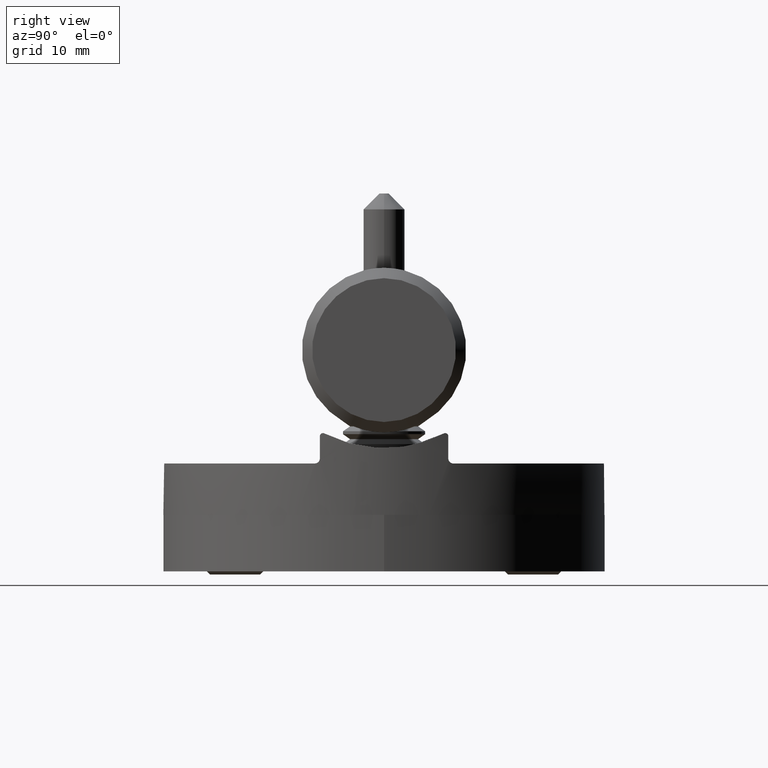
[diagram: clean part render]
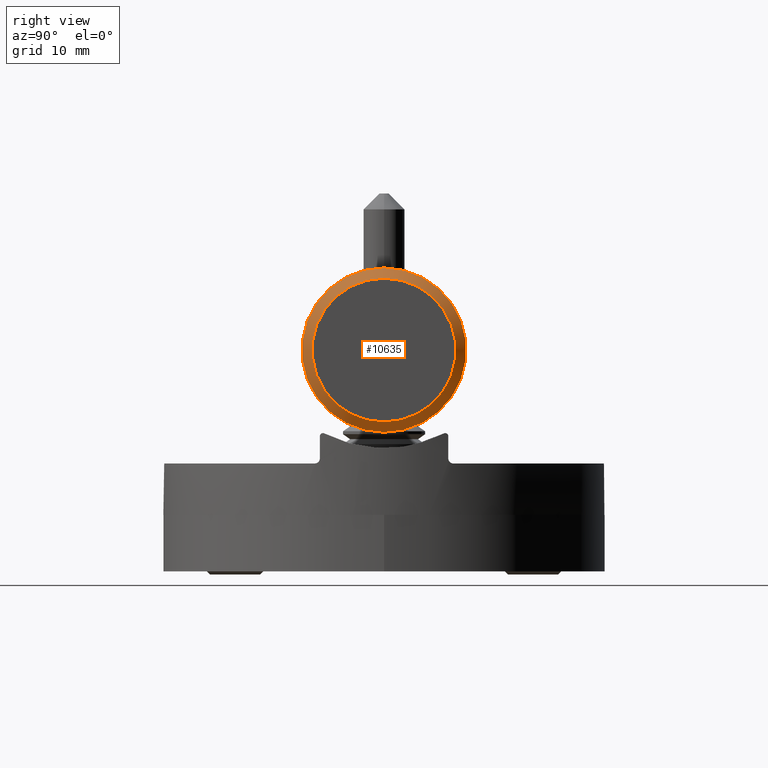
[diagram: same view with one face highlighted and labeled with its STEP entity id]
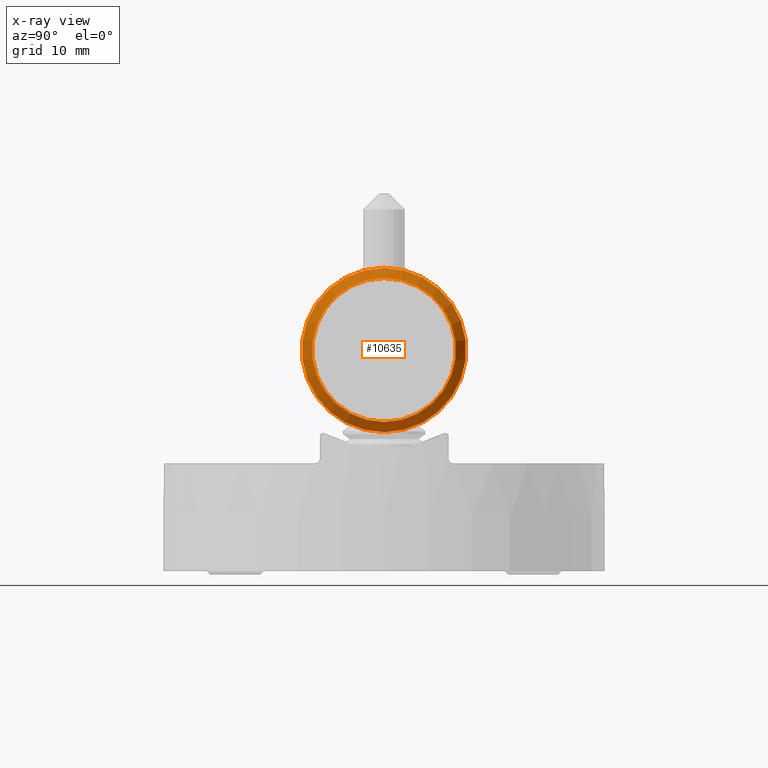
[diagram: x-ray of the same camera — body ghosted, the highlighted face saturated]
A machine part, right view. The second image highlights one B-rep face of the part: STEP entity #10635.
The next image is the same camera in x-ray: the body ghosted, the highlighted face saturated — about 0% of this face is hidden behind the body in this view.
In plain terms, the highlighted conical surface has half-angle 45 deg.
Its self-contained STEP definition (entity closure, byte-faithful):
#1131 = DIRECTION ( 'NONE',  ( -1.000000000000000000, 0.000000000000000000, 0.000000000000000000 ) ) ;
#1638 = CIRCLE ( 'NONE', #11763, 7.000000000000002665 ) ;
#3120 = VERTEX_POINT ( 'NONE', #19074 ) ;
#3542 = ORIENTED_EDGE ( 'NONE', *, *, #6314, .F. ) ;
#3645 = AXIS2_PLACEMENT_3D ( 'NONE', #4064, #7339, #14725 ) ;
#4064 = CARTESIAN_POINT ( 'NONE',  ( 10.00000000000000000, 0.000000000000000000, 0.000000000000000000 ) ) ;
#4305 = CARTESIAN_POINT ( 'NONE',  ( 10.00000000000000000, 0.000000000000000000, 0.000000000000000000 ) ) ;
#5531 = ORIENTED_EDGE ( 'NONE', *, *, #20659, .F. ) ;
#5680 = CIRCLE ( 'NONE', #6044, 8.000000000000000000 ) ;
#6044 = AXIS2_PLACEMENT_3D ( 'NONE', #22451, #1131, #6499 ) ;
#6314 = EDGE_CURVE ( 'NONE', #6472, #6472, #5680, .T. ) ;
#6472 = VERTEX_POINT ( 'NONE', #13683 ) ;
#6499 = DIRECTION ( 'NONE',  ( 0.000000000000000000, 0.000000000000000000, -1.000000000000000000 ) ) ;
#7339 = DIRECTION ( 'NONE',  ( -1.000000000000000000, 0.000000000000000000, 0.000000000000000000 ) ) ;
#9208 = EDGE_LOOP ( 'NONE', ( #5531 ) ) ;
#10635 = ADVANCED_FACE ( 'NONE', ( #14515, #13960 ), #13100, .T. ) ;
#11119 = DIRECTION ( 'NONE',  ( 1.000000000000000000, 0.000000000000000000, 0.000000000000000000 ) ) ;
#11763 = AXIS2_PLACEMENT_3D ( 'NONE', #4305, #11119, #14721 ) ;
#13100 = CONICAL_SURFACE ( 'NONE', #3645, 7.000000000000002665, 0.7853981633974466137 ) ;
#13683 = CARTESIAN_POINT ( 'NONE',  ( 9.000000000000000000, 0.000000000000000000, -8.000000000000000000 ) ) ;
#13960 = FACE_BOUND ( 'NONE', #9208, .T. ) ;
#14515 = FACE_OUTER_BOUND ( 'NONE', #15396, .T. ) ;
#14721 = DIRECTION ( 'NONE',  ( 0.000000000000000000, 0.000000000000000000, -1.000000000000000000 ) ) ;
#14725 = DIRECTION ( 'NONE',  ( 0.000000000000000000, 0.000000000000000000, 1.000000000000000000 ) ) ;
#15396 = EDGE_LOOP ( 'NONE', ( #3542 ) ) ;
#19074 = CARTESIAN_POINT ( 'NONE',  ( 10.00000000000000000, 0.000000000000000000, -7.000000000000002665 ) ) ;
#20659 = EDGE_CURVE ( 'NONE', #3120, #3120, #1638, .T. ) ;
#22451 = CARTESIAN_POINT ( 'NONE',  ( 9.000000000000000000, 0.000000000000000000, 0.000000000000000000 ) ) ;